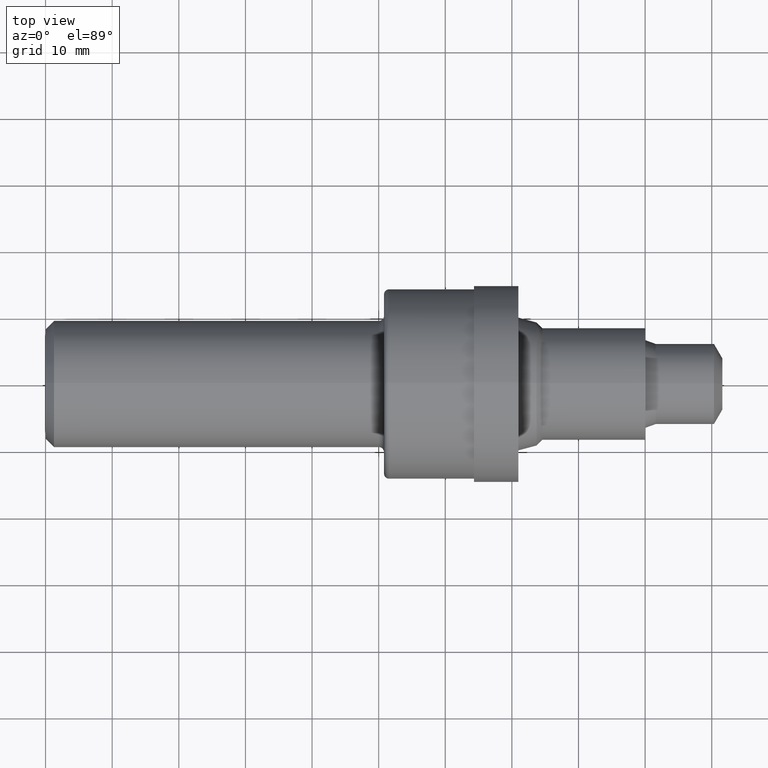
[diagram: clean part render]
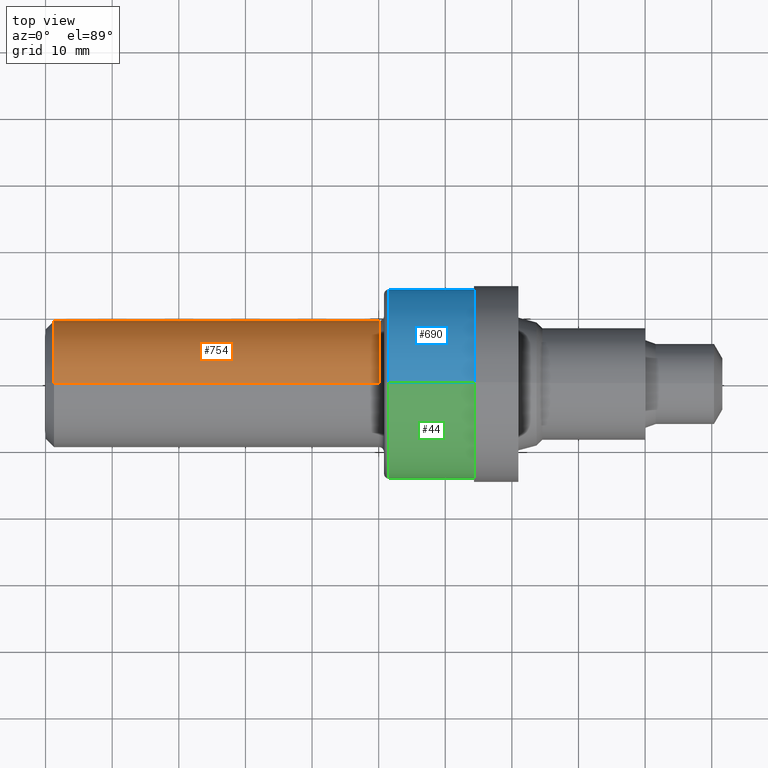
[diagram: same view with three faces highlighted in distinct colors, each labeled with its STEP entity id]
A machine part, top view with three faces highlighted in distinct colors.
Their STEP definitions:

[orange] entity #754 — the highlighted cylindrical surface (partial cylindrical patch) has radius 9.5212 mm, axis along (-1, -0, -0).
#34 = AXIS2_PLACEMENT_3D ( 'NONE', #382, #752, #377 ) ;
#52 = DIRECTION ( 'NONE',  ( -1.000000000000000000, -0.0000000000000000000, -0.0000000000000000000 ) ) ;
#64 = EDGE_CURVE ( 'NONE', #615, #208, #331, .T. ) ;
#73 = DIRECTION ( 'NONE',  ( 0.0000000000000000000, 0.0000000000000000000, 1.000000000000000000 ) ) ;
#134 = VERTEX_POINT ( 'NONE', #672 ) ;
#208 = VERTEX_POINT ( 'NONE', #398 ) ;
#232 = CIRCLE ( 'NONE', #753, 0.3748500000000005161 ) ;
#273 = CARTESIAN_POINT ( 'NONE',  ( 1.969999999999999973, 0.0000000000000000000, 0.0000000000000000000 ) ) ;
#279 = AXIS2_PLACEMENT_3D ( 'NONE', #323, #575, #73 ) ;
#297 = CARTESIAN_POINT ( 'NONE',  ( 1.969999999999999973, 4.590588526603859294E-17, -0.3748500000000005161 ) ) ;
#302 = CARTESIAN_POINT ( 'NONE',  ( 1.969999999999999973, 0.0000000000000000000, 0.3748500000000005161 ) ) ;
#323 = CARTESIAN_POINT ( 'NONE',  ( 0.0000000000000000000, 0.0000000000000000000, 0.0000000000000000000 ) ) ;
#331 = LINE ( 'NONE', #488, #806 ) ;
#333 = DIRECTION ( 'NONE',  ( 0.0000000000000000000, 0.0000000000000000000, 1.000000000000000000 ) ) ;
#377 = DIRECTION ( 'NONE',  ( 0.0000000000000000000, 0.0000000000000000000, 1.000000000000000000 ) ) ;
#379 = CIRCLE ( 'NONE', #34, 0.3748500000000000165 ) ;
#382 = CARTESIAN_POINT ( 'NONE',  ( 0.05000000000000000278, 0.0000000000000000000, 0.0000000000000000000 ) ) ;
#398 = CARTESIAN_POINT ( 'NONE',  ( 0.05000000000000000278, 4.590588526603853748E-17, 0.3748500000000000165 ) ) ;
#405 = EDGE_LOOP ( 'NONE', ( #419, #596, #728, #659 ) ) ;
#419 = ORIENTED_EDGE ( 'NONE', *, *, #739, .T. ) ;
#449 = LINE ( 'NONE', #478, #744 ) ;
#457 = EDGE_CURVE ( 'NONE', #648, #134, #449, .T. ) ;
#478 = CARTESIAN_POINT ( 'NONE',  ( 0.0000000000000000000, 4.590588526603856213E-17, -0.3748500000000002386 ) ) ;
#488 = CARTESIAN_POINT ( 'NONE',  ( 0.0000000000000000000, 0.0000000000000000000, 0.3748500000000002386 ) ) ;
#504 = CYLINDRICAL_SURFACE ( 'NONE', #279, 0.3748500000000002386 ) ;
#575 = DIRECTION ( 'NONE',  ( -1.000000000000000000, -0.0000000000000000000, -0.0000000000000000000 ) ) ;
#596 = ORIENTED_EDGE ( 'NONE', *, *, #457, .T. ) ;
#615 = VERTEX_POINT ( 'NONE', #302 ) ;
#648 = VERTEX_POINT ( 'NONE', #297 ) ;
#659 = ORIENTED_EDGE ( 'NONE', *, *, #64, .F. ) ;
#669 = FACE_OUTER_BOUND ( 'NONE', #405, .T. ) ;
#672 = CARTESIAN_POINT ( 'NONE',  ( 0.05000000000000000278, 0.0000000000000000000, -0.3748500000000000165 ) ) ;
#704 = DIRECTION ( 'NONE',  ( -1.000000000000000000, -0.0000000000000000000, -0.0000000000000000000 ) ) ;
#709 = DIRECTION ( 'NONE',  ( -1.000000000000000000, -0.0000000000000000000, -0.0000000000000000000 ) ) ;
#728 = ORIENTED_EDGE ( 'NONE', *, *, #815, .F. ) ;
#739 = EDGE_CURVE ( 'NONE', #615, #648, #232, .T. ) ;
#744 = VECTOR ( 'NONE', #709, 39.37007874015748143 ) ;
#752 = DIRECTION ( 'NONE',  ( -1.000000000000000000, -0.0000000000000000000, -0.0000000000000000000 ) ) ;
#753 = AXIS2_PLACEMENT_3D ( 'NONE', #273, #704, #333 ) ;
#754 = ADVANCED_FACE ( 'NONE', ( #669 ), #504, .T. ) ;
#806 = VECTOR ( 'NONE', #52, 39.37007874015748143 ) ;
#815 = EDGE_CURVE ( 'NONE', #208, #134, #379, .T. ) ;

[blue] entity #690 — the highlighted cylindrical surface (partial cylindrical patch) has radius 14.2875 mm, axis along (-1, -0, -0).
#1 = CARTESIAN_POINT ( 'NONE',  ( 2.532000000000000028, 0.0000000000000000000, 0.0000000000000000000 ) ) ;
#42 = EDGE_LOOP ( 'NONE', ( #577, #257, #184, #243 ) ) ;
#45 = DIRECTION ( 'NONE',  ( 0.0000000000000000000, 0.0000000000000000000, 1.000000000000000000 ) ) ;
#48 = LINE ( 'NONE', #165, #531 ) ;
#50 = VERTEX_POINT ( 'NONE', #556 ) ;
#66 = AXIS2_PLACEMENT_3D ( 'NONE', #112, #485, #45 ) ;
#92 = EDGE_CURVE ( 'NONE', #356, #50, #545, .T. ) ;
#99 = CARTESIAN_POINT ( 'NONE',  ( 2.532000000000000028, 0.0000000000000000000, 0.5625000000000000000 ) ) ;
#112 = CARTESIAN_POINT ( 'NONE',  ( 2.029999999999999805, 0.0000000000000000000, 0.0000000000000000000 ) ) ;
#160 = CARTESIAN_POINT ( 'NONE',  ( 0.0000000000000000000, 0.0000000000000000000, 0.0000000000000000000 ) ) ;
#165 = CARTESIAN_POINT ( 'NONE',  ( 0.0000000000000000000, 6.888638245203860712E-17, -0.5624999999999998890 ) ) ;
#184 = ORIENTED_EDGE ( 'NONE', *, *, #92, .F. ) ;
#243 = ORIENTED_EDGE ( 'NONE', *, *, #404, .F. ) ;
#250 = EDGE_CURVE ( 'NONE', #568, #456, #673, .T. ) ;
#251 = DIRECTION ( 'NONE',  ( -1.000000000000000000, -0.0000000000000000000, -0.0000000000000000000 ) ) ;
#257 = ORIENTED_EDGE ( 'NONE', *, *, #570, .T. ) ;
#317 = DIRECTION ( 'NONE',  ( -1.000000000000000000, -0.0000000000000000000, -0.0000000000000000000 ) ) ;
#322 = DIRECTION ( 'NONE',  ( 0.0000000000000000000, 0.0000000000000000000, 1.000000000000000000 ) ) ;
#356 = VERTEX_POINT ( 'NONE', #786 ) ;
#365 = CARTESIAN_POINT ( 'NONE',  ( 0.0000000000000000000, 0.0000000000000000000, 0.5624999999999998890 ) ) ;
#404 = EDGE_CURVE ( 'NONE', #568, #356, #803, .T. ) ;
#410 = CARTESIAN_POINT ( 'NONE',  ( 2.532000000000000028, 6.888638245203861944E-17, -0.5625000000000001110 ) ) ;
#456 = VERTEX_POINT ( 'NONE', #410 ) ;
#485 = DIRECTION ( 'NONE',  ( -1.000000000000000000, -0.0000000000000000000, -0.0000000000000000000 ) ) ;
#493 = AXIS2_PLACEMENT_3D ( 'NONE', #160, #572, #795 ) ;
#531 = VECTOR ( 'NONE', #730, 39.37007874015748143 ) ;
#539 = CYLINDRICAL_SURFACE ( 'NONE', #493, 0.5624999999999998890 ) ;
#545 = CIRCLE ( 'NONE', #66, 0.5624999999999998890 ) ;
#550 = AXIS2_PLACEMENT_3D ( 'NONE', #1, #317, #322 ) ;
#556 = CARTESIAN_POINT ( 'NONE',  ( 2.029999999999999805, 6.888638245203860712E-17, -0.5624999999999998890 ) ) ;
#568 = VERTEX_POINT ( 'NONE', #99 ) ;
#570 = EDGE_CURVE ( 'NONE', #456, #50, #48, .T. ) ;
#572 = DIRECTION ( 'NONE',  ( -1.000000000000000000, -0.0000000000000000000, -0.0000000000000000000 ) ) ;
#577 = ORIENTED_EDGE ( 'NONE', *, *, #250, .T. ) ;
#634 = VECTOR ( 'NONE', #251, 39.37007874015748143 ) ;
#673 = CIRCLE ( 'NONE', #550, 0.5625000000000000000 ) ;
#690 = ADVANCED_FACE ( 'NONE', ( #725 ), #539, .T. ) ;
#725 = FACE_OUTER_BOUND ( 'NONE', #42, .T. ) ;
#730 = DIRECTION ( 'NONE',  ( -1.000000000000000000, -0.0000000000000000000, -0.0000000000000000000 ) ) ;
#786 = CARTESIAN_POINT ( 'NONE',  ( 2.029999999999999805, 0.0000000000000000000, 0.5624999999999998890 ) ) ;
#795 = DIRECTION ( 'NONE',  ( 0.0000000000000000000, 0.0000000000000000000, 1.000000000000000000 ) ) ;
#803 = LINE ( 'NONE', #365, #634 ) ;

[green] entity #44 — the highlighted cylindrical surface (partial cylindrical patch) has radius 14.2875 mm, axis along (-1, -0, -0).
#23 = DIRECTION ( 'NONE',  ( -1.000000000000000000, -0.0000000000000000000, -0.0000000000000000000 ) ) ;
#44 = ADVANCED_FACE ( 'NONE', ( #146 ), #794, .T. ) ;
#48 = LINE ( 'NONE', #165, #531 ) ;
#50 = VERTEX_POINT ( 'NONE', #556 ) ;
#51 = AXIS2_PLACEMENT_3D ( 'NONE', #158, #23, #783 ) ;
#58 = CARTESIAN_POINT ( 'NONE',  ( 0.0000000000000000000, 0.0000000000000000000, 0.0000000000000000000 ) ) ;
#99 = CARTESIAN_POINT ( 'NONE',  ( 2.532000000000000028, 0.0000000000000000000, 0.5625000000000000000 ) ) ;
#124 = AXIS2_PLACEMENT_3D ( 'NONE', #249, #439, #682 ) ;
#146 = FACE_OUTER_BOUND ( 'NONE', #715, .T. ) ;
#158 = CARTESIAN_POINT ( 'NONE',  ( 2.532000000000000028, 0.0000000000000000000, 0.0000000000000000000 ) ) ;
#165 = CARTESIAN_POINT ( 'NONE',  ( 0.0000000000000000000, 6.888638245203860712E-17, -0.5624999999999998890 ) ) ;
#249 = CARTESIAN_POINT ( 'NONE',  ( 2.029999999999999805, 0.0000000000000000000, 0.0000000000000000000 ) ) ;
#251 = DIRECTION ( 'NONE',  ( -1.000000000000000000, -0.0000000000000000000, -0.0000000000000000000 ) ) ;
#268 = ORIENTED_EDGE ( 'NONE', *, *, #570, .F. ) ;
#330 = EDGE_CURVE ( 'NONE', #456, #568, #469, .T. ) ;
#355 = EDGE_CURVE ( 'NONE', #50, #356, #510, .T. ) ;
#356 = VERTEX_POINT ( 'NONE', #786 ) ;
#365 = CARTESIAN_POINT ( 'NONE',  ( 0.0000000000000000000, 0.0000000000000000000, 0.5624999999999998890 ) ) ;
#404 = EDGE_CURVE ( 'NONE', #568, #356, #803, .T. ) ;
#410 = CARTESIAN_POINT ( 'NONE',  ( 2.532000000000000028, 6.888638245203861944E-17, -0.5625000000000001110 ) ) ;
#439 = DIRECTION ( 'NONE',  ( -1.000000000000000000, -0.0000000000000000000, -0.0000000000000000000 ) ) ;
#456 = VERTEX_POINT ( 'NONE', #410 ) ;
#469 = CIRCLE ( 'NONE', #51, 0.5625000000000000000 ) ;
#496 = DIRECTION ( 'NONE',  ( -1.000000000000000000, -0.0000000000000000000, -0.0000000000000000000 ) ) ;
#510 = CIRCLE ( 'NONE', #124, 0.5624999999999998890 ) ;
#531 = VECTOR ( 'NONE', #730, 39.37007874015748143 ) ;
#540 = ORIENTED_EDGE ( 'NONE', *, *, #355, .F. ) ;
#546 = ORIENTED_EDGE ( 'NONE', *, *, #330, .T. ) ;
#556 = CARTESIAN_POINT ( 'NONE',  ( 2.029999999999999805, 6.888638245203860712E-17, -0.5624999999999998890 ) ) ;
#568 = VERTEX_POINT ( 'NONE', #99 ) ;
#570 = EDGE_CURVE ( 'NONE', #456, #50, #48, .T. ) ;
#574 = ORIENTED_EDGE ( 'NONE', *, *, #404, .T. ) ;
#624 = DIRECTION ( 'NONE',  ( 0.0000000000000000000, 0.0000000000000000000, 1.000000000000000000 ) ) ;
#634 = VECTOR ( 'NONE', #251, 39.37007874015748143 ) ;
#682 = DIRECTION ( 'NONE',  ( 0.0000000000000000000, 0.0000000000000000000, 1.000000000000000000 ) ) ;
#715 = EDGE_LOOP ( 'NONE', ( #268, #546, #574, #540 ) ) ;
#727 = AXIS2_PLACEMENT_3D ( 'NONE', #58, #496, #624 ) ;
#730 = DIRECTION ( 'NONE',  ( -1.000000000000000000, -0.0000000000000000000, -0.0000000000000000000 ) ) ;
#783 = DIRECTION ( 'NONE',  ( 0.0000000000000000000, 0.0000000000000000000, 1.000000000000000000 ) ) ;
#786 = CARTESIAN_POINT ( 'NONE',  ( 2.029999999999999805, 0.0000000000000000000, 0.5624999999999998890 ) ) ;
#794 = CYLINDRICAL_SURFACE ( 'NONE', #727, 0.5624999999999998890 ) ;
#803 = LINE ( 'NONE', #365, #634 ) ;